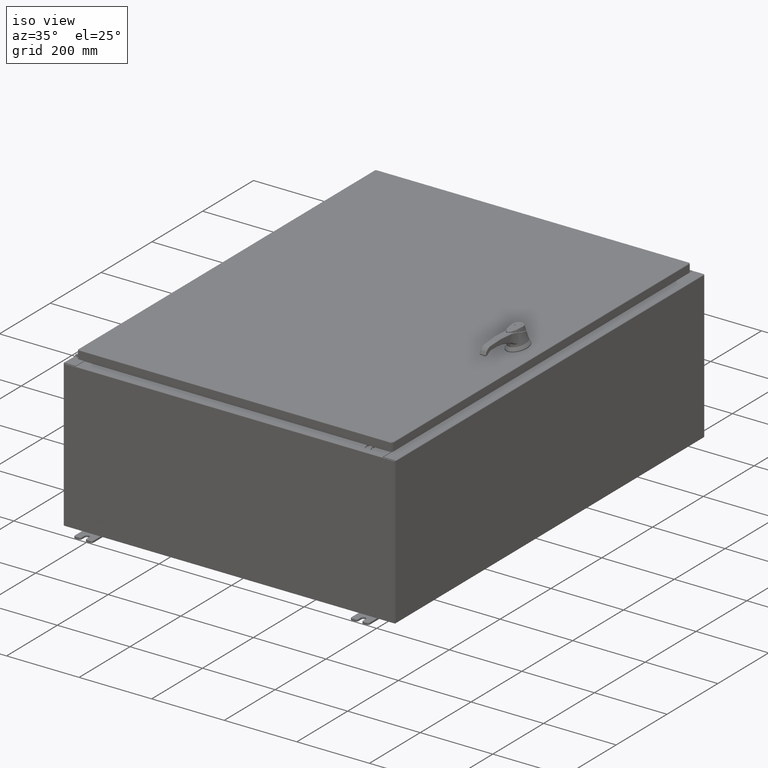
[diagram: clean part render]
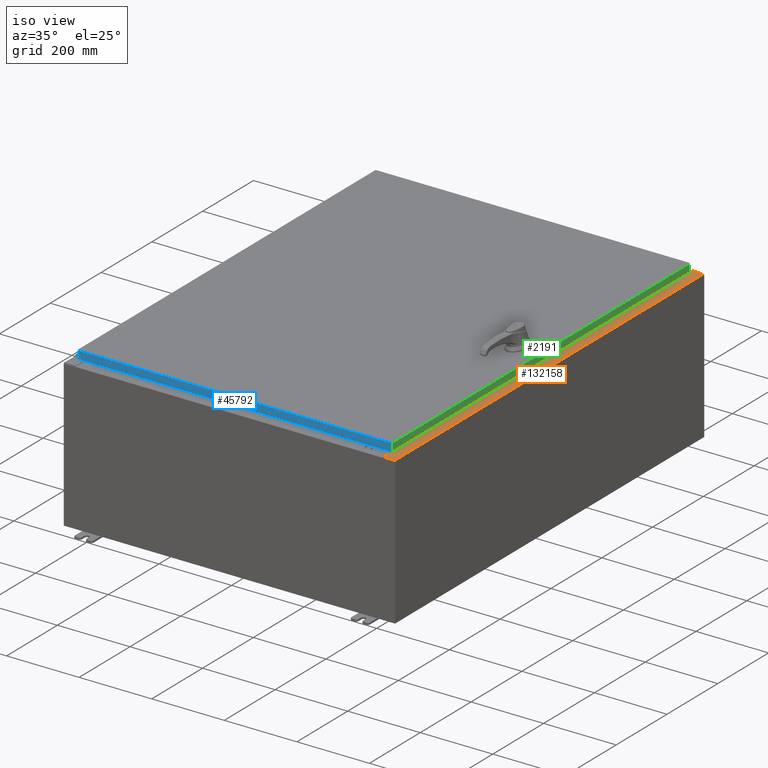
[diagram: same view with three faces highlighted in distinct colors, each labeled with its STEP entity id]
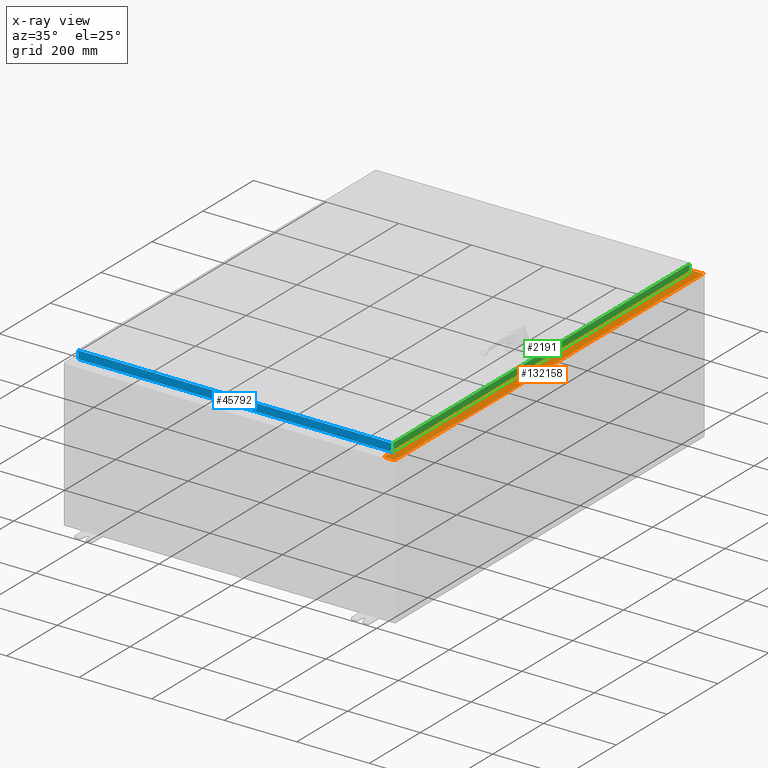
[diagram: x-ray of the same camera — body ghosted, the three highlighted faces saturated]
A machine part, iso view with three faces highlighted in distinct colors.
The next image is the same camera in x-ray (body ghosted, the three faces saturated) — at least one of them is partly hidden behind the body in this view.
Their STEP definitions:

[orange] entity #132158 — the highlighted planar face has unit normal (-0, 0, -1).
#2582 = PLANE ( 'NONE',  #64931 ) ;
#2999 = VERTEX_POINT ( 'NONE', #117827 ) ;
#4996 = CARTESIAN_POINT ( 'NONE',  ( 16.71270000000005100, 22.59374999999997200, 15.92530000000000900 ) ) ;
#5262 = ORIENTED_EDGE ( 'NONE', *, *, #113396, .F. ) ;
#5669 = VERTEX_POINT ( 'NONE', #15047 ) ;
#6222 = CARTESIAN_POINT ( 'NONE',  ( 1.138521944745543500E-013, 23.92529999999998600, 15.92530000000012600 ) ) ;
#9933 = ORIENTED_EDGE ( 'NONE', *, *, #59008, .F. ) ;
#10192 = ORIENTED_EDGE ( 'NONE', *, *, #32734, .F. ) ;
#10256 = ORIENTED_EDGE ( 'NONE', *, *, #66606, .F. ) ;
#10997 = FACE_OUTER_BOUND ( 'NONE', #28561, .T. ) ;
#11206 = CARTESIAN_POINT ( 'NONE',  ( 16.75005000000005100, -22.63109999999998600, 15.92530000000000500 ) ) ;
#12964 = DIRECTION ( 'NONE',  ( -1.000000000000000000, 0.0000000000000000000, 7.132762385546384700E-015 ) ) ;
#14150 = ORIENTED_EDGE ( 'NONE', *, *, #89261, .T. ) ;
#14333 = CARTESIAN_POINT ( 'NONE',  ( 16.71270000000005100, -22.59374999999998900, 15.92530000000000900 ) ) ;
#15047 = CARTESIAN_POINT ( 'NONE',  ( 17.91230000000005200, 23.92529999999998600, 15.92530000000000000 ) ) ;
#15564 = ORIENTED_EDGE ( 'NONE', *, *, #21991, .F. ) ;
#15575 = LINE ( 'NONE', #67375, #83766 ) ;
#15606 = LINE ( 'NONE', #86382, #119467 ) ;
#17735 = CARTESIAN_POINT ( 'NONE',  ( 16.69970000000005000, 22.63109999999996800, 15.92530000000000500 ) ) ;
#18188 = LINE ( 'NONE', #61981, #97624 ) ;
#18472 = CARTESIAN_POINT ( 'NONE',  ( 16.69970000000005000, 23.92529999999998200, 15.92530000000000500 ) ) ;
#19696 = DIRECTION ( 'NONE',  ( -0.0000000000000000000, 1.000000000000000000, -0.0000000000000000000 ) ) ;
#19997 = CARTESIAN_POINT ( 'NONE',  ( 16.75005000000005100, 22.61242499999997000, 15.92530000000000900 ) ) ;
#21435 = CARTESIAN_POINT ( 'NONE',  ( 16.75005000000005100, -22.59374999999998900, 15.92530000000000500 ) ) ;
#21460 = LINE ( 'NONE', #134159, #48986 ) ;
#21991 = EDGE_CURVE ( 'NONE', #32412, #96599, #93915, .T. ) ;
#25925 = LINE ( 'NONE', #27934, #50260 ) ;
#26899 = EDGE_CURVE ( 'NONE', #2999, #125317, #129452, .T. ) ;
#27934 = CARTESIAN_POINT ( 'NONE',  ( 16.69970000000005000, 5.279815919650416800E-030, 15.92530000000000500 ) ) ;
#28561 = EDGE_LOOP ( 'NONE', ( #9933, #73235, #42233, #73352, #118024, #14150, #5262, #98678, #10192, #10256, #15564, #122967 ) ) ;
#30182 = CARTESIAN_POINT ( 'NONE',  ( 16.71270000000005100, -22.59374999999998900, 15.92530000000000900 ) ) ;
#30503 = DIRECTION ( 'NONE',  ( 1.000000000000000000, 0.0000000000000000000, 0.0000000000000000000 ) ) ;
#32412 = VERTEX_POINT ( 'NONE', #21435 ) ;
#32734 = EDGE_CURVE ( 'NONE', #82559, #2999, #62268, .T. ) ;
#34734 = DIRECTION ( 'NONE',  ( -1.000000000000000000, 0.0000000000000000000, -4.340572780400098900E-014 ) ) ;
#38382 = DIRECTION ( 'NONE',  ( 3.161623214578966600E-031, -1.000000000000000000, -2.255110714221909800E-045 ) ) ;
#39008 = CARTESIAN_POINT ( 'NONE',  ( 16.71270000000005100, 22.59374999999997200, 15.92530000000000900 ) ) ;
#41136 = VERTEX_POINT ( 'NONE', #76505 ) ;
#41902 = EDGE_CURVE ( 'NONE', #109387, #32412, #97527, .T. ) ;
#42224 = EDGE_CURVE ( 'NONE', #5669, #116437, #50478, .T. ) ;
#42233 = ORIENTED_EDGE ( 'NONE', *, *, #48977, .T. ) ;
#44936 = CARTESIAN_POINT ( 'NONE',  ( 16.75005000000005100, -22.61242499999998800, 15.92530000000000900 ) ) ;
#47187 = VECTOR ( 'NONE', #131496, 39.37007874015748100 ) ;
#48263 = AXIS2_PLACEMENT_3D ( 'NONE', #44936, #117525, #55340 ) ;
#48977 = EDGE_CURVE ( 'NONE', #111264, #116437, #15575, .T. ) ;
#48986 = VECTOR ( 'NONE', #92394, 39.37007874015748100 ) ;
#49391 = DIRECTION ( 'NONE',  ( 1.000000000000000000, 0.0000000000000000000, 0.0000000000000000000 ) ) ;
#50260 = VECTOR ( 'NONE', #38382, 39.37007874015748100 ) ;
#50478 = LINE ( 'NONE', #79770, #47187 ) ;
#55340 = DIRECTION ( 'NONE',  ( 1.000000000000000000, 0.0000000000000000000, 0.0000000000000000000 ) ) ;
#56059 = VECTOR ( 'NONE', #19696, 39.37007874015748100 ) ;
#58934 = EDGE_CURVE ( 'NONE', #41136, #111264, #21460, .T. ) ;
#59008 = EDGE_CURVE ( 'NONE', #41136, #109387, #18188, .T. ) ;
#61161 = AXIS2_PLACEMENT_3D ( 'NONE', #19997, #92546, #30503 ) ;
#61253 = DIRECTION ( 'NONE',  ( -1.000000000000000000, 0.0000000000000000000, 0.0000000000000000000 ) ) ;
#61506 = VECTOR ( 'NONE', #109553, 39.37007874015748100 ) ;
#61981 = CARTESIAN_POINT ( 'NONE',  ( 16.69970000000005000, -22.63109999999998600, 15.92530000000000500 ) ) ;
#62268 = LINE ( 'NONE', #39008, #114281 ) ;
#64593 = CARTESIAN_POINT ( 'NONE',  ( 1.138521944745543500E-013, 0.0000000000000000000, 15.92530000000012600 ) ) ;
#64931 = AXIS2_PLACEMENT_3D ( 'NONE', #64593, #75013, #12964 ) ;
#66283 = VECTOR ( 'NONE', #61253, 39.37007874015748100 ) ;
#66606 = EDGE_CURVE ( 'NONE', #96599, #82559, #111299, .T. ) ;
#67375 = CARTESIAN_POINT ( 'NONE',  ( 1.138521944745543500E-013, -23.92529999999998900, 15.92530000000012600 ) ) ;
#72963 = VERTEX_POINT ( 'NONE', #18472 ) ;
#73235 = ORIENTED_EDGE ( 'NONE', *, *, #58934, .T. ) ;
#73352 = ORIENTED_EDGE ( 'NONE', *, *, #42224, .F. ) ;
#75013 = DIRECTION ( 'NONE',  ( -7.132762385546384700E-015, 0.0000000000000000000, -1.000000000000000000 ) ) ;
#75890 = CARTESIAN_POINT ( 'NONE',  ( 16.75005000000005100, 22.63109999999996800, 15.92530000000000500 ) ) ;
#76505 = CARTESIAN_POINT ( 'NONE',  ( 16.69970000000005000, -22.63109999999998600, 15.92530000000000500 ) ) ;
#78331 = EDGE_CURVE ( 'NONE', #5669, #72963, #116740, .T. ) ;
#79770 = CARTESIAN_POINT ( 'NONE',  ( 17.91230000000005200, -23.92529999999998900, 15.92530000000000000 ) ) ;
#82559 = VERTEX_POINT ( 'NONE', #4996 ) ;
#83766 = VECTOR ( 'NONE', #119606, 39.37007874015748100 ) ;
#86382 = CARTESIAN_POINT ( 'NONE',  ( 16.75005000000005100, 22.63109999999996800, 15.92530000000000900 ) ) ;
#89261 = EDGE_CURVE ( 'NONE', #72963, #111134, #25925, .T. ) ;
#92394 = DIRECTION ( 'NONE',  ( 3.161623214578966600E-031, -1.000000000000000000, -2.255110714221909800E-045 ) ) ;
#92546 = DIRECTION ( 'NONE',  ( 7.132762385546384700E-015, 0.0000000000000000000, 1.000000000000000000 ) ) ;
#93915 = LINE ( 'NONE', #133851, #66283 ) ;
#96599 = VERTEX_POINT ( 'NONE', #14333 ) ;
#97527 = CIRCLE ( 'NONE', #48263, 0.01867499999999949400 ) ;
#97624 = VECTOR ( 'NONE', #103712, 39.37007874015748100 ) ;
#98678 = ORIENTED_EDGE ( 'NONE', *, *, #26899, .F. ) ;
#103712 = DIRECTION ( 'NONE',  ( 1.000000000000000000, 0.0000000000000000000, 4.340572780400098900E-014 ) ) ;
#109387 = VERTEX_POINT ( 'NONE', #11206 ) ;
#109553 = DIRECTION ( 'NONE',  ( -1.000000000000000000, 4.379057701015053300E-047, 7.132762385546384700E-015 ) ) ;
#111134 = VERTEX_POINT ( 'NONE', #17735 ) ;
#111264 = VERTEX_POINT ( 'NONE', #125598 ) ;
#111299 = LINE ( 'NONE', #30182, #56059 ) ;
#113396 = EDGE_CURVE ( 'NONE', #125317, #111134, #15606, .T. ) ;
#114281 = VECTOR ( 'NONE', #49391, 39.37007874015748100 ) ;
#116437 = VERTEX_POINT ( 'NONE', #124160 ) ;
#116740 = LINE ( 'NONE', #6222, #61506 ) ;
#117525 = DIRECTION ( 'NONE',  ( 7.132762385546384700E-015, 0.0000000000000000000, 1.000000000000000000 ) ) ;
#117827 = CARTESIAN_POINT ( 'NONE',  ( 16.75005000000005100, 22.59374999999997200, 15.92530000000000500 ) ) ;
#118024 = ORIENTED_EDGE ( 'NONE', *, *, #78331, .T. ) ;
#119467 = VECTOR ( 'NONE', #34734, 39.37007874015748100 ) ;
#119606 = DIRECTION ( 'NONE',  ( 1.000000000000000000, 8.144358738339254500E-032, -7.132762385546384700E-015 ) ) ;
#122967 = ORIENTED_EDGE ( 'NONE', *, *, #41902, .F. ) ;
#124160 = CARTESIAN_POINT ( 'NONE',  ( 17.91230000000005200, -23.92529999999998900, 15.92530000000000000 ) ) ;
#125317 = VERTEX_POINT ( 'NONE', #75890 ) ;
#125598 = CARTESIAN_POINT ( 'NONE',  ( 16.69970000000005000, -23.92529999999998900, 15.92530000000000500 ) ) ;
#129452 = CIRCLE ( 'NONE', #61161, 0.01867499999999949400 ) ;
#131496 = DIRECTION ( 'NONE',  ( -0.0000000000000000000, -1.000000000000000000, -0.0000000000000000000 ) ) ;
#132158 = ADVANCED_FACE ( 'NONE', ( #10997 ), #2582, .F. ) ;
#133851 = CARTESIAN_POINT ( 'NONE',  ( 16.75005000000005100, -22.59374999999998900, 15.92530000000000900 ) ) ;
#134159 = CARTESIAN_POINT ( 'NONE',  ( 16.69970000000005000, 5.279815919650416800E-030, 15.92530000000000500 ) ) ;

[blue] entity #45792 — the highlighted planar face has unit normal (-0, 1, -0).
#10137 = EDGE_CURVE ( 'NONE', #14899, #53972, #38268, .T. ) ;
#11646 = DIRECTION ( 'NONE',  ( -6.481495528880676900E-031, 1.000000000000000000, -5.064839849203732200E-015 ) ) ;
#14899 = VERTEX_POINT ( 'NONE', #15973 ) ;
#15644 = DIRECTION ( 'NONE',  ( 0.0000000000000000000, -5.064839849203732200E-015, -1.000000000000000000 ) ) ;
#15973 = CARTESIAN_POINT ( 'NONE',  ( 16.98915786437626700, -23.09400000000000500, -0.9376999999999997600 ) ) ;
#16077 = CARTESIAN_POINT ( 'NONE',  ( 17.07799999999999900, -23.09400000000000100, -0.08769999999999550400 ) ) ;
#31902 = ORIENTED_EDGE ( 'NONE', *, *, #63990, .F. ) ;
#37104 = VECTOR ( 'NONE', #130346, 39.37007874015748100 ) ;
#38268 = LINE ( 'NONE', #59583, #121036 ) ;
#39798 = VECTOR ( 'NONE', #15644, 39.37007874015748100 ) ;
#40003 = VECTOR ( 'NONE', #72107, 39.37007874015748100 ) ;
#43209 = LINE ( 'NONE', #123874, #40003 ) ;
#45792 = ADVANCED_FACE ( 'NONE', ( #106838 ), #73699, .F. ) ;
#46122 = CARTESIAN_POINT ( 'NONE',  ( 16.98915786437626700, -23.09400000000000100, -0.08769999999999550400 ) ) ;
#50894 = ORIENTED_EDGE ( 'NONE', *, *, #70836, .T. ) ;
#53972 = VERTEX_POINT ( 'NONE', #97073 ) ;
#59583 = CARTESIAN_POINT ( 'NONE',  ( 17.07799999999999900, -23.09400000000000500, -0.9376999999999997600 ) ) ;
#63990 = EDGE_CURVE ( 'NONE', #126468, #71914, #119866, .T. ) ;
#68584 = EDGE_LOOP ( 'NONE', ( #31902, #50894, #130918, #107189 ) ) ;
#70836 = EDGE_CURVE ( 'NONE', #126468, #53972, #94890, .T. ) ;
#71087 = AXIS2_PLACEMENT_3D ( 'NONE', #104542, #11646, #84171 ) ;
#71914 = VERTEX_POINT ( 'NONE', #46122 ) ;
#72107 = DIRECTION ( 'NONE',  ( -0.0000000000000000000, -5.064839849203732200E-015, -1.000000000000000000 ) ) ;
#73699 = PLANE ( 'NONE',  #71087 ) ;
#77707 = CARTESIAN_POINT ( 'NONE',  ( -16.98915786437627100, -23.09400000000000100, 1.172282251335225800E-013 ) ) ;
#80553 = CARTESIAN_POINT ( 'NONE',  ( -16.98915786437626700, -23.09400000000000100, -0.08769999999999550400 ) ) ;
#81559 = EDGE_CURVE ( 'NONE', #71914, #14899, #43209, .T. ) ;
#84171 = DIRECTION ( 'NONE',  ( 0.0000000000000000000, 5.064839849203732200E-015, 1.000000000000000000 ) ) ;
#94890 = LINE ( 'NONE', #77707, #39798 ) ;
#97073 = CARTESIAN_POINT ( 'NONE',  ( -16.98915786437626700, -23.09400000000000500, -0.9376999999999954300 ) ) ;
#104542 = CARTESIAN_POINT ( 'NONE',  ( 1.496836577439703600E-029, -23.09400000000000100, 1.172282251335225800E-013 ) ) ;
#106838 = FACE_OUTER_BOUND ( 'NONE', #68584, .T. ) ;
#107189 = ORIENTED_EDGE ( 'NONE', *, *, #81559, .F. ) ;
#119866 = LINE ( 'NONE', #16077, #37104 ) ;
#121036 = VECTOR ( 'NONE', #121756, 39.37007874015748100 ) ;
#121756 = DIRECTION ( 'NONE',  ( -1.000000000000000000, 8.758115402030108600E-047, 1.279703943630056800E-016 ) ) ;
#123874 = CARTESIAN_POINT ( 'NONE',  ( 16.98915786437626700, -23.09400000000000100, -0.07469999999999962800 ) ) ;
#126468 = VERTEX_POINT ( 'NONE', #80553 ) ;
#130346 = DIRECTION ( 'NONE',  ( 1.000000000000000000, 6.481495528880677800E-031, -3.349804276043092000E-045 ) ) ;
#130918 = ORIENTED_EDGE ( 'NONE', *, *, #10137, .F. ) ;

[green] entity #2191 — the highlighted planar face has unit normal (1, 0, 0).
#196 = CARTESIAN_POINT ( 'NONE',  ( 17.07800000000000300, -23.00515786437626200, -0.9376999999999997600 ) ) ;
#2191 = ADVANCED_FACE ( 'NONE', ( #49540 ), #48932, .T. ) ;
#2522 = DIRECTION ( 'NONE',  ( 1.000000000000000000, 0.0000000000000000000, 2.532419924601866100E-015 ) ) ;
#4480 = VECTOR ( 'NONE', #27421, 39.37007874015748100 ) ;
#14648 = ORIENTED_EDGE ( 'NONE', *, *, #132233, .T. ) ;
#14777 = CARTESIAN_POINT ( 'NONE',  ( 17.07799999999999900, -23.00515786437626900, -0.08770000000000008300 ) ) ;
#16264 = VECTOR ( 'NONE', #126158, 39.37007874015748100 ) ;
#20981 = VECTOR ( 'NONE', #102304, 39.37007874015748100 ) ;
#22750 = CARTESIAN_POINT ( 'NONE',  ( 17.07799999999999900, -23.00515786437626900, -0.07469999999999980800 ) ) ;
#27421 = DIRECTION ( 'NONE',  ( -2.532419924601866100E-015, -6.982962677686265900E-015, 1.000000000000000000 ) ) ;
#28276 = VERTEX_POINT ( 'NONE', #104429 ) ;
#40645 = CARTESIAN_POINT ( 'NONE',  ( 17.07799999999999900, 0.0000000000000000000, -0.08770000000000008300 ) ) ;
#45798 = VERTEX_POINT ( 'NONE', #94550 ) ;
#48343 = ORIENTED_EDGE ( 'NONE', *, *, #119327, .F. ) ;
#48932 = PLANE ( 'NONE',  #120827 ) ;
#49540 = FACE_OUTER_BOUND ( 'NONE', #107505, .T. ) ;
#51043 = DIRECTION ( 'NONE',  ( 0.0000000000000000000, -1.000000000000000000, 0.0000000000000000000 ) ) ;
#56699 = VECTOR ( 'NONE', #51043, 39.37007874015748100 ) ;
#59580 = LINE ( 'NONE', #99906, #4480 ) ;
#63026 = EDGE_CURVE ( 'NONE', #28276, #83052, #84308, .T. ) ;
#63492 = EDGE_CURVE ( 'NONE', #45798, #105549, #106934, .T. ) ;
#65629 = ORIENTED_EDGE ( 'NONE', *, *, #63492, .F. ) ;
#71410 = LINE ( 'NONE', #22750, #16264 ) ;
#71473 = CARTESIAN_POINT ( 'NONE',  ( 17.07800000000000300, -23.09400000000000100, -0.9376999999999997600 ) ) ;
#74534 = CARTESIAN_POINT ( 'NONE',  ( 17.07799999999999900, 0.0000000000000000000, 4.350948112836224800E-014 ) ) ;
#83052 = VERTEX_POINT ( 'NONE', #14777 ) ;
#83416 = ORIENTED_EDGE ( 'NONE', *, *, #63026, .T. ) ;
#83839 = DIRECTION ( 'NONE',  ( 2.532419924601866100E-015, 0.0000000000000000000, -1.000000000000000000 ) ) ;
#84308 = LINE ( 'NONE', #40645, #56699 ) ;
#94550 = CARTESIAN_POINT ( 'NONE',  ( 17.07800000000000300, 23.00515786437628000, -0.9376999999999997600 ) ) ;
#99906 = CARTESIAN_POINT ( 'NONE',  ( 17.07799999999999900, 23.00515786437627600, 2.041536398895824600E-013 ) ) ;
#102304 = DIRECTION ( 'NONE',  ( 0.0000000000000000000, -1.000000000000000000, 0.0000000000000000000 ) ) ;
#104429 = CARTESIAN_POINT ( 'NONE',  ( 17.07799999999999900, 23.00515786437627200, -0.08770000000000008300 ) ) ;
#105549 = VERTEX_POINT ( 'NONE', #196 ) ;
#106934 = LINE ( 'NONE', #71473, #20981 ) ;
#107505 = EDGE_LOOP ( 'NONE', ( #48343, #65629, #14648, #83416 ) ) ;
#119327 = EDGE_CURVE ( 'NONE', #105549, #83052, #71410, .T. ) ;
#120827 = AXIS2_PLACEMENT_3D ( 'NONE', #74534, #2522, #83839 ) ;
#126158 = DIRECTION ( 'NONE',  ( -2.532419924601866100E-015, -6.982962677686265900E-015, 1.000000000000000000 ) ) ;
#132233 = EDGE_CURVE ( 'NONE', #45798, #28276, #59580, .T. ) ;